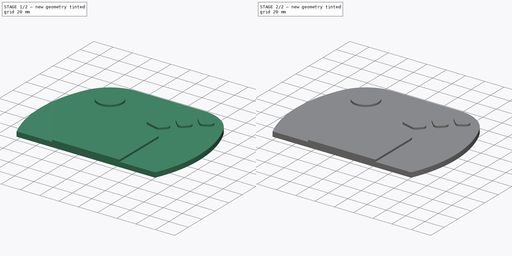
[diagram: build sequence overview — one tinted view per stage of 2, left to right]
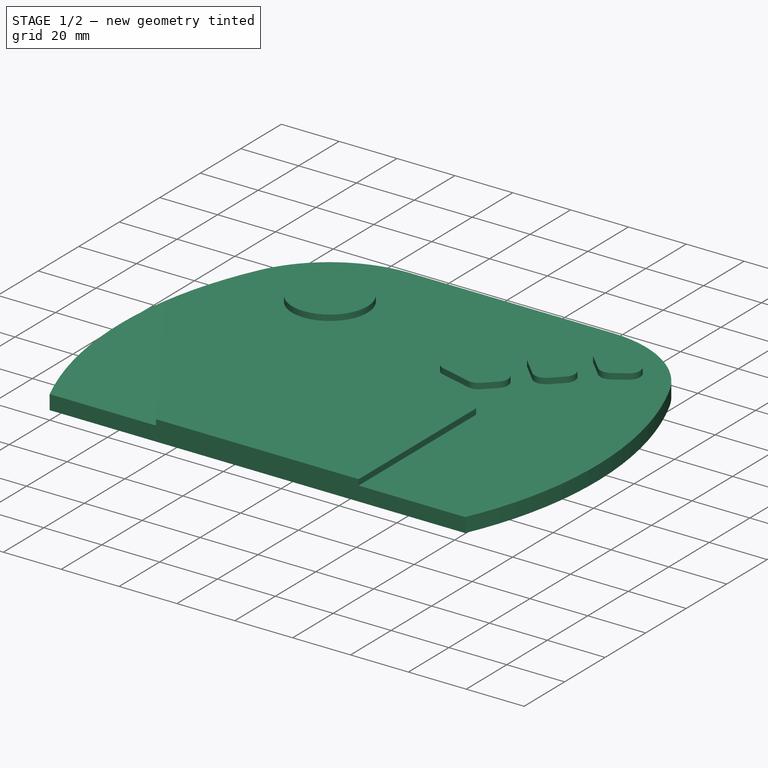
[diagram: stage 1 of 2 — iso view after this stage's code; geometry added in this stage tinted green]
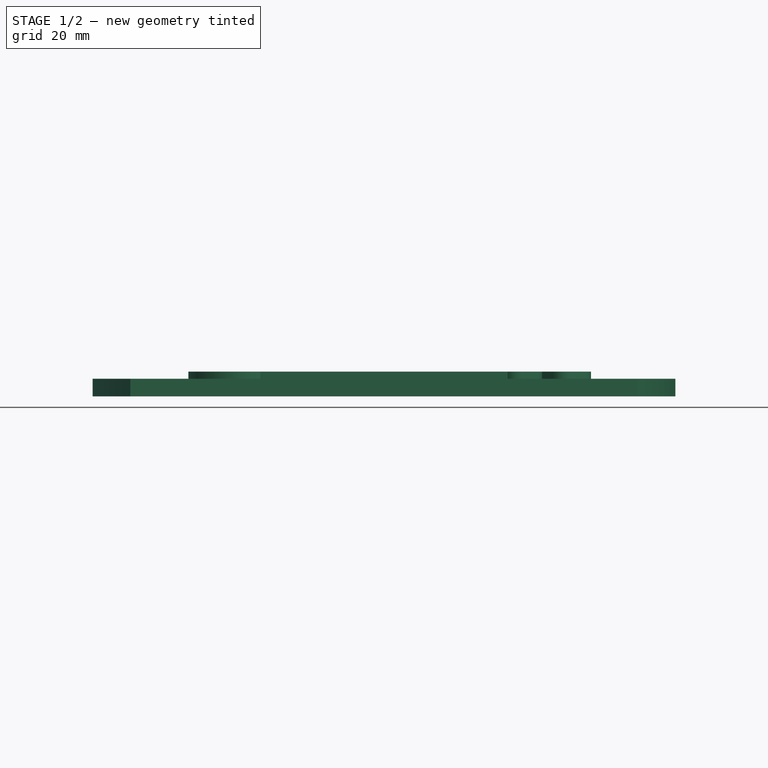
[diagram: stage 1 of 2 — front view after this stage's code; geometry added in this stage tinted green]
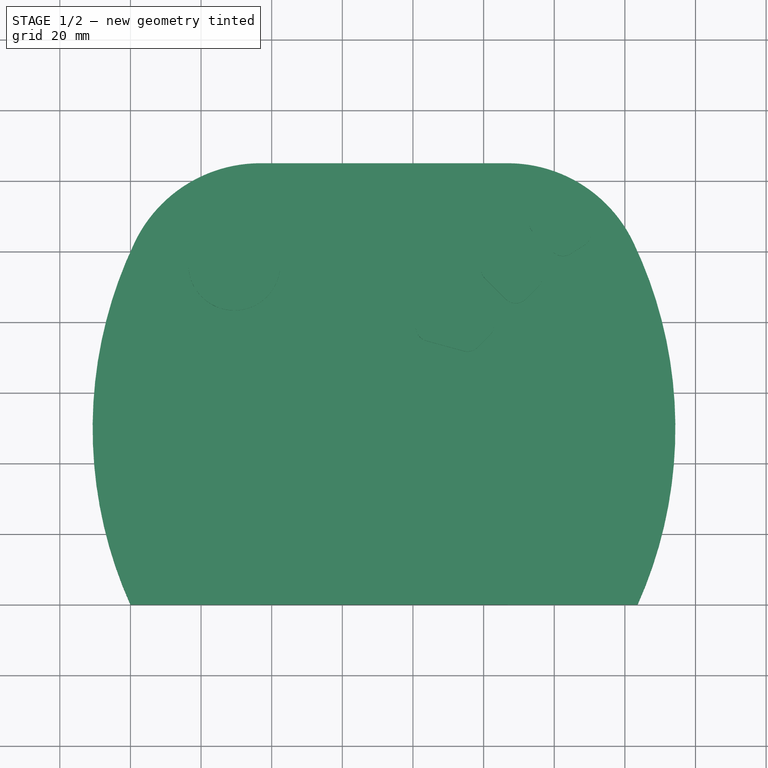
[diagram: stage 1 of 2 — top view after this stage's code; geometry added in this stage tinted green]
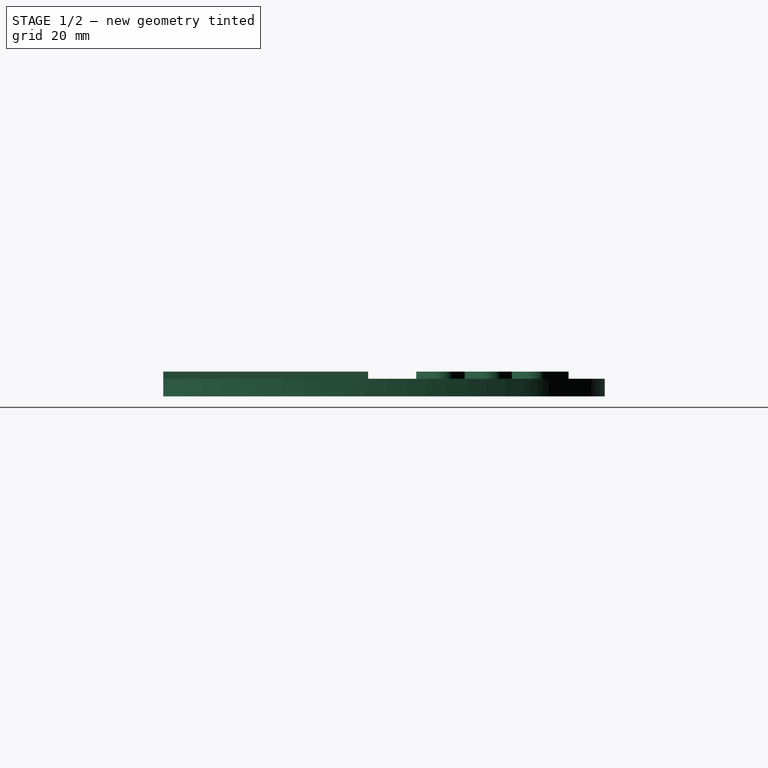
[diagram: stage 1 of 2 — right view after this stage's code; geometry added in this stage tinted green]
FCSTD DOCUMENT  (FreeCAD 0.21R33771 (Git))
Label: Jag Icon
License: All rights reserved
LicenseURL: http://en.wikipedia.org/wiki/All_rights_reserved
objects: Sketcher::SketchObject×2, PartDesign::Pad×2, PartDesign::Fillet×1, PartDesign::Body×1
note: 9 computed .brp shape members not serialized (recipe doc carries the construction recipe); baked Part::Feature solids carry a one-line shape summary decoded from their .brp

FEATURE [Sketcher::SketchObject] Sketch
  FullyConstrained = true
  MapMode = 5
  Support = -> [XY_Plane]
  sketch-geometry (10):
    g0: ArcOfCircle CenterX=111.472 CenterY=50 CenterZ=0 NormalX=0 NormalY=0 NormalZ=1 AngleXU=0 Radius=122.172 StartAngle=2.69764 EndAngle=3.56323
    g1: ArcOfCircle CenterX=32.1276 CenterY=50 CenterZ=0 NormalX=0 NormalY=0 NormalZ=1 AngleXU=0 Radius=122.172 StartAngle=5.86155 EndAngle=6.72714
    g2: LineSegment StartX=-1.42e-14 StartY=1.42e-14 StartZ=0 EndX=143.6 EndY=2.84e-14 EndZ=0
    g3: LineSegment StartX=1.14341 StartY=102.475 StartZ=0 EndX=142.457 EndY=102.475 EndZ=0
    g4: LineSegment StartX=71.8 StartY=102.475 StartZ=0 EndX=71.8 EndY=0 EndZ=0
    g5: LineSegment StartX=-10.7 StartY=50 StartZ=0 EndX=154.3 EndY=50 EndZ=0
    g6: LineSegment StartX=71.8 StartY=125 StartZ=0 EndX=71.8 EndY=0 EndZ=0
    g7: LineSegment StartX=36.8 StartY=125 StartZ=0 EndX=106.8 EndY=125 EndZ=0
    g8: ArcOfCircle CenterX=36.8 CenterY=85.5158 CenterZ=0 NormalX=0 NormalY=0 NormalZ=1 AngleXU=0 Radius=39.4842 StartAngle=1.5708 EndAngle=2.69764
    g9: ArcOfCircle CenterX=106.8 CenterY=85.5158 CenterZ=0 NormalX=0 NormalY=0 NormalZ=1 AngleXU=0 Radius=39.4842 StartAngle=0.443955 EndAngle=1.5708
  constraints (28):
    c: Coincident(g0,g-1)
    c: PointOnObject(g1,g-1)
    c: Coincident(g2,g0)
    c: Coincident(g2,g1)
    c: Coincident(g3,g0)
    c: Coincident(g3,g1)
    c: Horizontal(g3)
    c: Symmetric(g0,g1,g4)
    c: Symmetric(g1,g0,g4)
    c: Vertical(g4)
    c: Equal(g0,g1)
    c: Distance(g2) = 143.6
    c: PointOnObject(g5,g0)
    c: PointOnObject(g5,g1)
    c: Horizontal(g5)
    c: Perpendicular(g0,g5)
    c: Distance(g5) = 165
    c: Coincident(g6,g4)
    c: Vertical(g6)
    c: Distance(g6) = 125
    c: DistanceY(g0,g5) = 50
    c: Horizontal(g7)
    c: Symmetric(g7,g7,g6)
    c: Coincident(g9,g1)
    c: Tangent(g8,g7) = 1.5708
    c: Tangent(g9,g7) = 1.5708
    c: Distance(g7) = 70
    c: Tangent(g8,g0) = -1.5708
FEATURE [PartDesign::Pad] Pad
  Direction = (0,0,1)
  Length = 5
  Length2 = 10
  Profile = -> Sketch
  ReferenceAxis = -> Sketch [N_Axis]
  Type = 0
FEATURE [Sketcher::SketchObject] Sketch001
  ExternalGeometry = -> [Pad]
  FullyConstrained = true
  MapMode = 5
  Placement = pos=(0,0,5) rot=(0,0,1;0rad)
  Support = -> [Pad]
  sketch-geometry (43):
    g0: Circle CenterX=29.4144 CenterY=96.3031 CenterZ=0 NormalX=0 NormalY=0 NormalZ=1 AngleXU=0 Radius=13
    g1: LineSegment StartX=29.4144 StartY=124.303 StartZ=0 EndX=29.4144 EndY=109.303 EndZ=0
    g2: LineSegment StartX=-1.58563 StartY=96.3031 StartZ=0 EndX=16.4144 EndY=96.3031 EndZ=0
    g3: LineSegment StartX=114.734 StartY=111.68 StartZ=0 EndX=118.692 EndY=114.167 EndZ=0
    g4: LineSegment StartX=123.649 StartY=113.608 StartZ=0 EndX=129.258 EndY=107.999 EndZ=0
    g5: LineSegment StartX=128.557 StartY=101.784 StartZ=0 EndX=124.6 EndY=99.297 EndZ=0
    g6: LineSegment StartX=119.643 StartY=99.8555 StartZ=0 EndX=114.034 EndY=105.464 EndZ=0
    g7: LineSegment StartX=100.41 StartY=98.017 StartZ=0 EndX=103.875 EndY=101.482 EndZ=0
    g8: LineSegment StartX=109.531 StartY=101.482 StartZ=0 EndX=115.4 EndY=95.6129 EndZ=0
    g9: LineSegment StartX=115.4 StartY=89.956 StartZ=0 EndX=111.936 EndY=86.4912 EndZ=0
    g10: LineSegment StartX=106.279 StartY=86.4912 StartZ=0 EndX=100.41 EndY=92.3602 EndZ=0
    g11: LineSegment StartX=90.4204 StartY=88.2818 StartZ=0 EndX=82.2862 EndY=81.6422 EndZ=0
    g12: LineSegment StartX=83.7587 StartY=74.6856 StartZ=0 EndX=94.3678 EndY=71.7792 EndZ=0
    g13: LineSegment StartX=98.2531 StartY=72.8087 StartZ=0 EndX=101.789 EndY=76.3442 EndZ=0
    g14: LineSegment StartX=101.789 StartY=82.0011 StartZ=0 EndX=95.7782 EndY=88.0115 EndZ=0
    g15: ArcOfCircle CenterX=116.863 CenterY=108.293 CenterZ=0 NormalX=0 NormalY=0 NormalZ=1 AngleXU=0 Radius=4 StartAngle=2.1318 EndAngle=3.92699
    g16: ArcOfCircle CenterX=120.82 CenterY=110.78 CenterZ=0 NormalX=0 NormalY=0 NormalZ=1 AngleXU=0 Radius=4 StartAngle=0.785398 EndAngle=2.1318
    g17: ArcOfCircle CenterX=126.429 CenterY=105.171 CenterZ=0 NormalX=0 NormalY=0 NormalZ=1 AngleXU=0 Radius=4 StartAngle=5.2734 EndAngle=7.06858
    g18: ArcOfCircle CenterX=122.471 CenterY=102.684 CenterZ=0 NormalX=0 NormalY=0 NormalZ=1 AngleXU=0 Radius=4 StartAngle=3.92699 EndAngle=5.2734
    g19: ArcOfCircle CenterX=112.572 CenterY=92.7844 CenterZ=0 NormalX=0 NormalY=0 NormalZ=1 AngleXU=0 Radius=4 StartAngle=5.49779 EndAngle=7.06858
    g20: ArcOfCircle CenterX=109.107 CenterY=89.3196 CenterZ=0 NormalX=0 NormalY=0 NormalZ=1 AngleXU=0 Radius=4 StartAngle=3.92699 EndAngle=5.49779
    g21: ArcOfCircle CenterX=103.238 CenterY=95.1886 CenterZ=0 NormalX=0 NormalY=0 NormalZ=1 AngleXU=0 Radius=4 StartAngle=2.35619 EndAngle=3.92699
    g22: ArcOfCircle CenterX=106.703 CenterY=98.6534 CenterZ=0 NormalX=0 NormalY=0 NormalZ=1 AngleXU=0 Radius=4 StartAngle=0.785398 EndAngle=2.35619
    g23: ArcOfCircle CenterX=92.9498 CenterY=85.183 CenterZ=0 NormalX=0 NormalY=0 NormalZ=1 AngleXU=0 Radius=4 StartAngle=0.785398 EndAngle=2.25537
    g24: ArcOfCircle CenterX=98.9602 CenterY=79.1726 CenterZ=0 NormalX=0 NormalY=0 NormalZ=1 AngleXU=0 Radius=4 StartAngle=5.49779 EndAngle=7.06858
    g25: ArcOfCircle CenterX=95.4247 CenterY=75.6371 CenterZ=0 NormalX=0 NormalY=0 NormalZ=1 AngleXU=0 Radius=4 StartAngle=4.445 EndAngle=5.49779
    g26: ArcOfCircle CenterX=84.8155 CenterY=78.5434 CenterZ=0 NormalX=0 NormalY=0 NormalZ=1 AngleXU=0 Radius=4 StartAngle=2.25537 EndAngle=4.445
    g27: LineSegment StartX=100.41 StartY=92.3602 StartZ=0 EndX=109.531 EndY=101.482 EndZ=0
    g28: LineSegment StartX=103.875 StartY=101.482 StartZ=0 EndX=115.4 EndY=89.956 EndZ=0
    g29: LineSegment StartX=101.789 StartY=82.0011 StartZ=0 EndX=106.279 EndY=86.4912 EndZ=0
    g30: LineSegment StartX=115.4 StartY=95.6129 StartZ=0 EndX=119.643 EndY=99.8555 EndZ=0
    g31: LineSegment StartX=119.643 StartY=99.8555 StartZ=0 EndX=129.258 EndY=107.999 EndZ=0
    g32: LineSegment StartX=114.034 StartY=105.464 StartZ=0 EndX=123.649 EndY=113.608 EndZ=0
    g33: LineSegment StartX=114.734 StartY=111.68 StartZ=0 EndX=128.557 EndY=101.784 EndZ=0
    g34: LineSegment StartX=118.692 StartY=114.167 StartZ=0 EndX=124.6 EndY=99.297 EndZ=0
    g35: LineSegment StartX=36.8 StartY=125 StartZ=0 EndX=106.8 EndY=125 EndZ=0
    g36: LineSegment StartX=118.692 StartY=114.167 StartZ=0 EndX=118.692 EndY=123.167 EndZ=0
    g37: LineSegment StartX=129.258 StartY=107.999 StartZ=0 EndX=139.258 EndY=107.999 EndZ=0
    g38: LineSegment StartX=36.8 StartY=58 StartZ=0 EndX=106.8 EndY=58 EndZ=0
    g39: LineSegment StartX=106.8 StartY=58 StartZ=0 EndX=106.8 EndY=2.13e-14 EndZ=0
    g40: LineSegment StartX=106.8 StartY=2.13e-14 StartZ=0 EndX=36.8 EndY=2.13e-14 EndZ=0
    g41: LineSegment StartX=36.8 StartY=2.13e-14 StartZ=0 EndX=36.8 EndY=58 EndZ=0
    g42: GeomPoint X=71.8 Y=2.13e-14 Z=0
  constraints (107):
    c: Diameter(g0) = 26
    c: PointOnObject(g1,g-3)
    c: PointOnObject(g1,g0)
    c: Vertical(g1)
    c: Perpendicular(g0,g1)
    c: PointOnObject(g2,g-4)
    c: PointOnObject(g2,g0)
    c: Horizontal(g2)
    c: Perpendicular(g0,g2)
    c: Distance(g2) = 18
    c: Distance(g1) = 15
    c: Tangent(g6,g15) = 1.5708
    c: Tangent(g3,g15) = 1.5708
    c: Tangent(g3,g16) = 1.5708
    c: Tangent(g4,g16) = 1.5708
    c: Tangent(g4,g17) = 1.5708
    c: Tangent(g5,g17) = 1.5708
    c: Tangent(g5,g18) = 1.5708
    c: Tangent(g6,g18) = 1.5708
    c: Tangent(g8,g19) = 1.5708
    c: Tangent(g9,g19) = 1.5708
    c: Tangent(g9,g20) = 1.5708
    c: Tangent(g10,g20) = 1.5708
    c: Tangent(g10,g21) = 1.5708
    c: Tangent(g7,g21) = 1.5708
    c: Tangent(g7,g22) = 1.5708
    c: Tangent(g8,g22) = 1.5708
    c: Tangent(g11,g23) = -1.5708
    c: Tangent(g14,g23) = -1.5708
    c: Tangent(g14,g24) = -1.5708
    c: Tangent(g13,g24) = -1.5708
    c: Tangent(g13,g25) = -1.5708
    c: Tangent(g12,g25) = -1.5708
    c: Tangent(g12,g26) = -1.5708
    c: Tangent(g11,g26) = -1.5708
    c: Radius(g26) = 4
    c: Equal(g26,g23)
    c: Equal(g23,g24)
    c: Equal(g25,g24)
    c: Equal(g24,g20)
    c: Equal(g20,g19)
    c: Equal(g19,g22)
    c: Equal(g21,g22)
    c: Equal(g22,g15)
    c: Equal(g16,g15)
    c: Equal(g16,g17)
    c: Equal(g17,g18)
    c: Distance(g11) = 10.5
    c: Distance(g14) = 8.5
    c: Distance(g13) = 5
    c: Distance(g12) = 11
    c: Parallel(g14,g10)
    c: Parallel(g10,g8)
    c: Perpendicular(g7,g8)
    c: Perpendicular(g9,g8)
    c: Perpendicular(g13,g14)
    c: Coincident(g27,g10)
    c: Coincident(g27,g8)
    c: Coincident(g28,g7)
    c: Coincident(g28,g9)
    c: Distance(g28) = 16.3
    c: Distance(g27) = 12.9
    c: Coincident(g29,g14)
    c: Coincident(g29,g10)
    c: Coincident(g30,g8)
    c: Coincident(g30,g6)
    c: Coincident(g31,g6)
    c: Coincident(g31,g4)
    c: Distance(g31) = 12.6
    c: Coincident(g32,g6)
    c: Coincident(g32,g4)
    c: Perpendicular(g29,g10)
    c: Perpendicular(g6,g30)
    c: Perpendicular(g8,g30)
    c: Parallel(g6,g4)
    c: Parallel(g5,g3)
    c: Coincident(g33,g3)
    c: Coincident(g33,g5)
    c: Distance(g33) = 17
    c: Coincident(g34,g3)
    c: Coincident(g34,g5)
    c: Distance(g34) = 16
    c: Coincident(g35,g-3)
    c: Coincident(g35,g-5)
    c: Coincident(g36,g3)
    c: Vertical(g36)
    c: Coincident(g37,g4)
    c: PointOnObject(g37,g-5)
    c: Horizontal(g37)
    c: Distance(g36) = 9
    c: Distance(g37) = 10
    c: PointOnObject(g36,g-5)
    c: Angle(g37,g4) = 2.35619
    c: Distance(g30) = 6
    c: Distance(g29) = 6.35
    c: Coincident(g38,g39)
    c: Coincident(g39,g40)
    c: Coincident(g40,g41)
    c: Coincident(g41,g38)
    c: Horizontal(g38)
    c: Horizontal(g40)
    c: Vertical(g39)
    c: Vertical(g41)
    c: Symmetric(g-7,g-7,g42)
    c: Symmetric(g39,g40,g42)
    c: Distance(g38) = 70
    c: Distance(g39) = 58
FEATURE [PartDesign::Pad] Pad001
  BaseFeature = -> Pad
  Direction = (0,0,1)
  Length = 2
  Length2 = 10
  Profile = -> Sketch001
  ReferenceAxis = -> Sketch001 [N_Axis]
  Type = 0
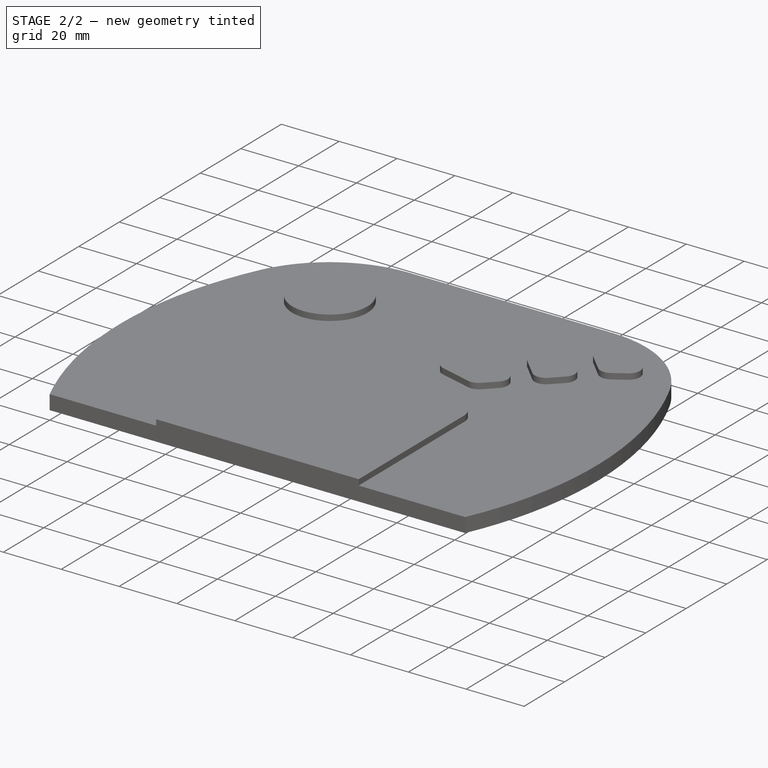
[diagram: stage 2 of 2 — iso view after this stage's code; geometry added in this stage tinted green]
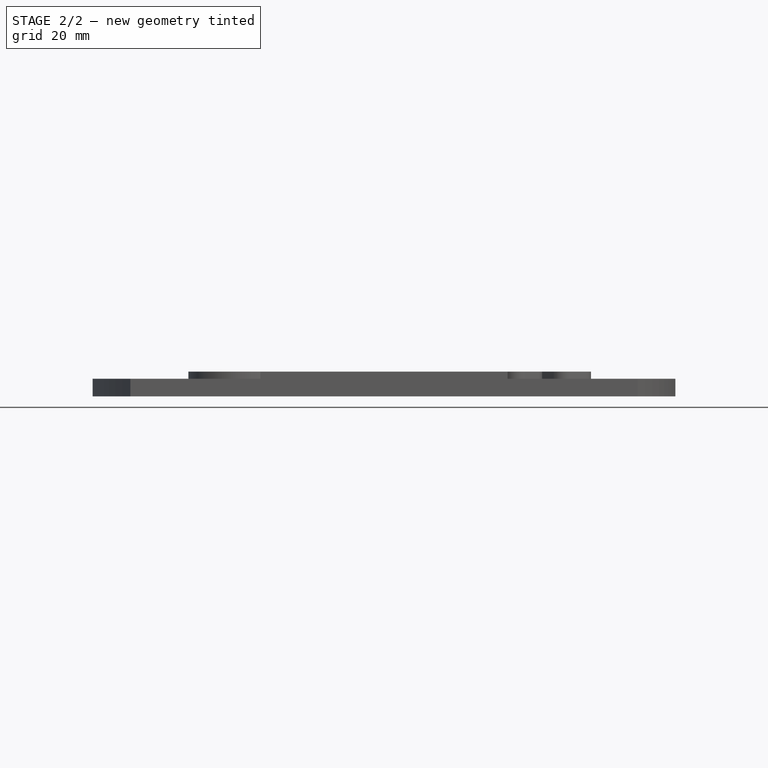
[diagram: stage 2 of 2 — front view after this stage's code; geometry added in this stage tinted green]
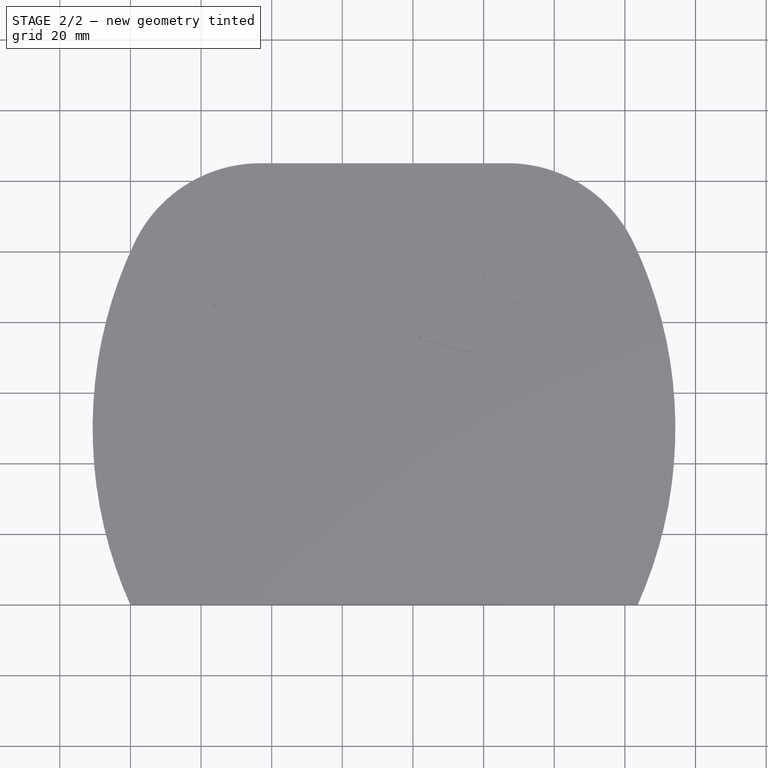
[diagram: stage 2 of 2 — top view after this stage's code; geometry added in this stage tinted green]
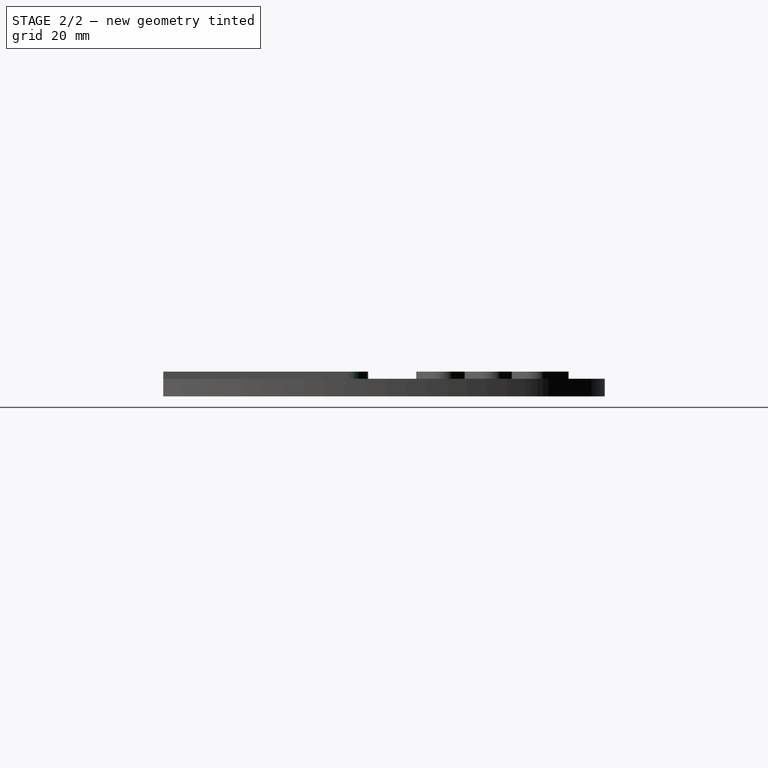
[diagram: stage 2 of 2 — right view after this stage's code; geometry added in this stage tinted green]
FEATURE [PartDesign::Fillet] Fillet
  Base = -> Pad001 [Edge52,Edge49]
  BaseFeature = -> Pad001
  Radius = 6
  SupportTransform = false
  UseAllEdges = false
FEATURE [PartDesign::Body] Body
  Group = -> [Sketch,Pad,Sketch001,Pad001,Fillet]
  Origin = -> Origin
  Tip = -> Fillet
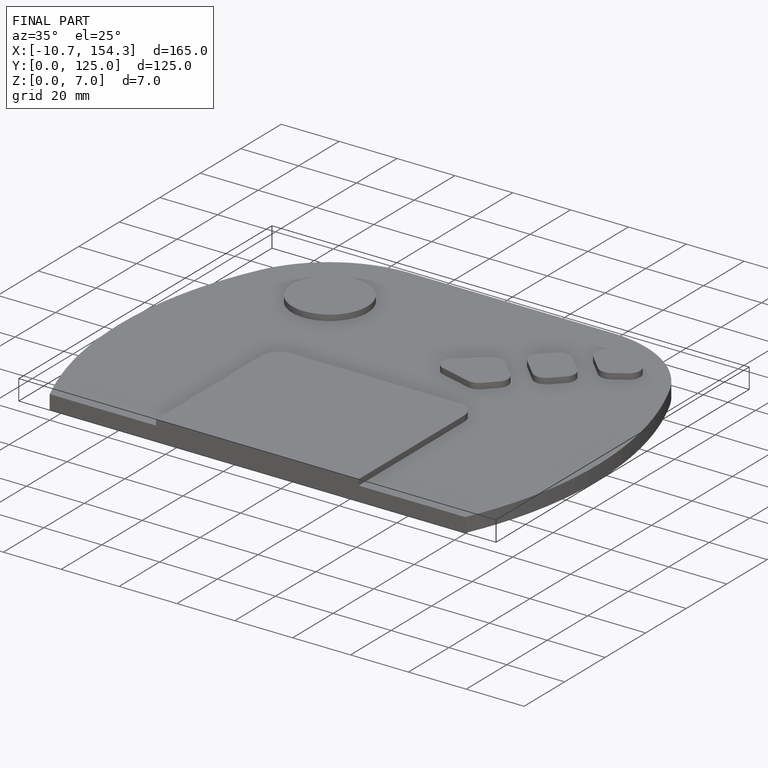
[diagram: finished part — iso view with bounding-box wireframe]
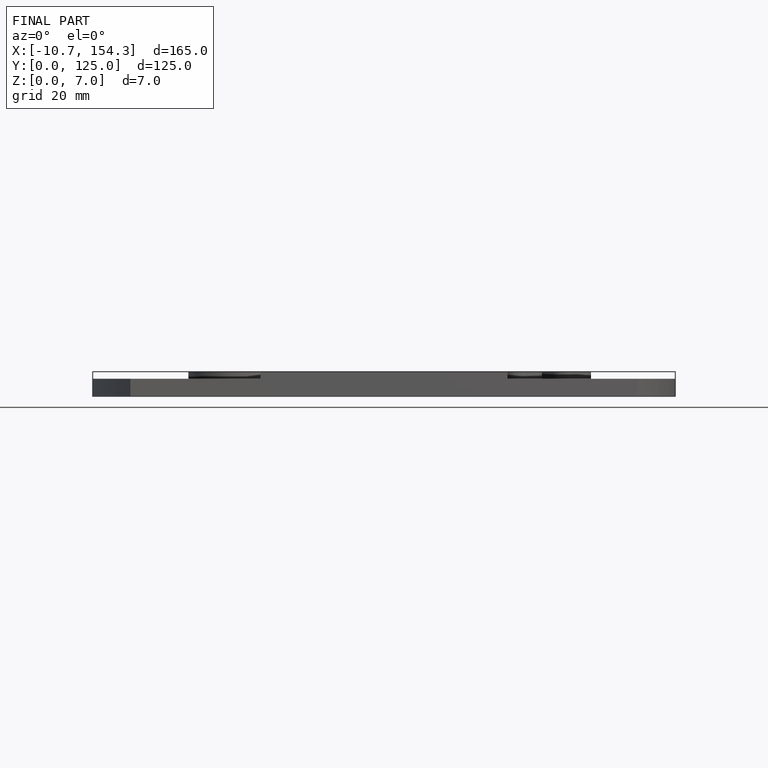
[diagram: finished part — front view with bounding-box wireframe]
